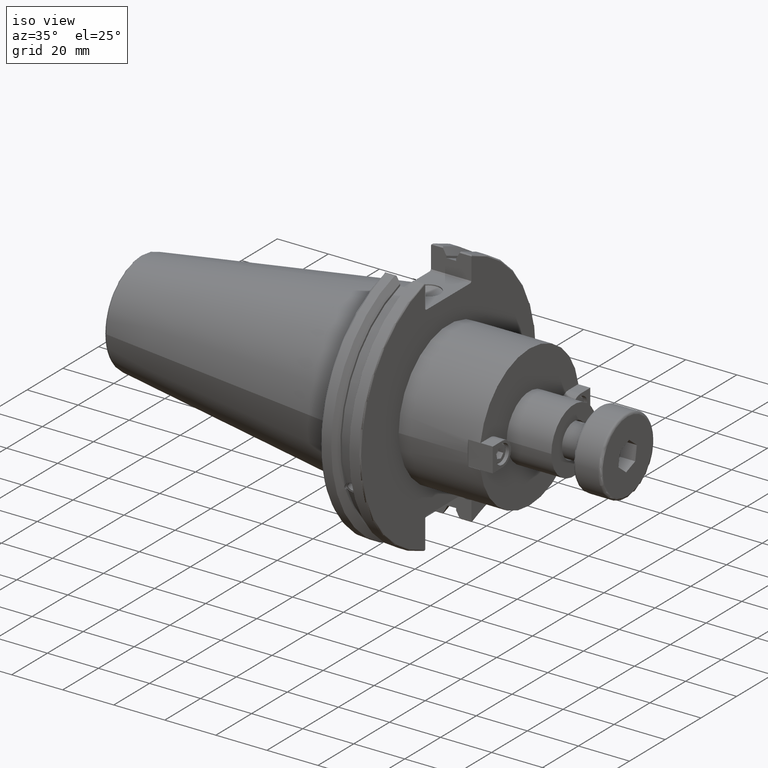
[diagram: clean part render]
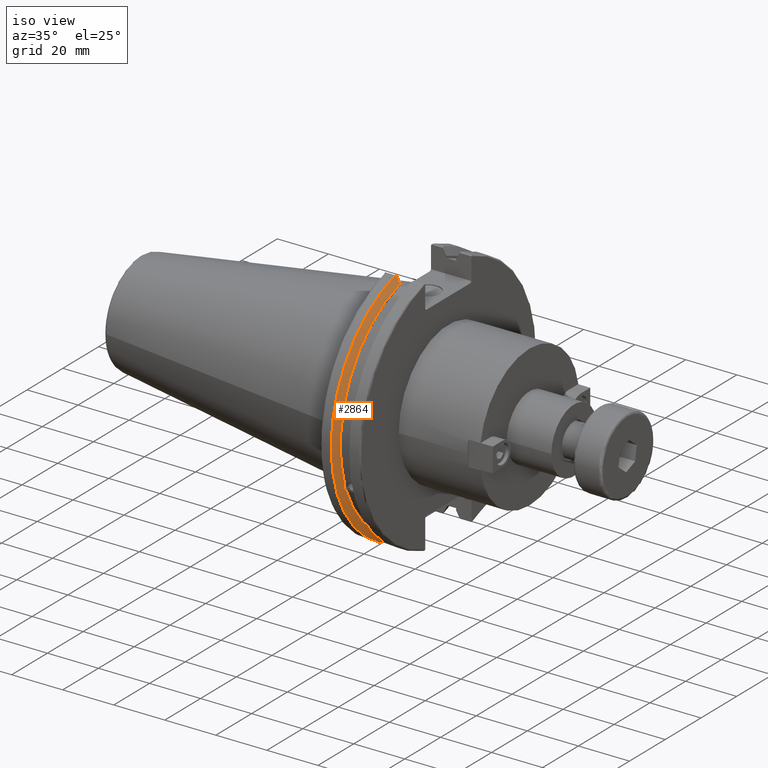
[diagram: same view with one face highlighted and labeled with its STEP entity id]
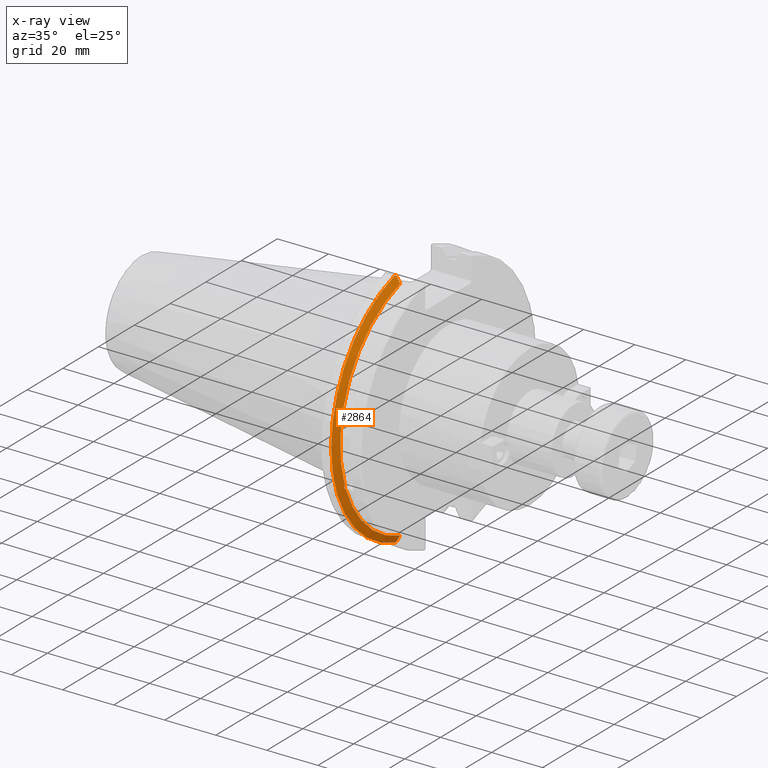
[diagram: x-ray of the same camera — body ghosted, the highlighted face saturated]
A machine part, iso view. The second image highlights one B-rep face of the part: STEP entity #2864.
The next image is the same camera in x-ray: the body ghosted, the highlighted face saturated — about 0% of this face is hidden behind the body in this view.
In plain terms, the highlighted conical surface has half-angle 60 deg.
Its self-contained STEP definition (entity closure, byte-faithful):
#461=(
BOUNDED_CURVE()
B_SPLINE_CURVE(2,(#5009,#5010,#5011),.UNSPECIFIED.,.F.,.F.)
B_SPLINE_CURVE_WITH_KNOTS((3,3),(0.,0.275823910674601),.UNSPECIFIED.)
CURVE()
GEOMETRIC_REPRESENTATION_ITEM()
RATIONAL_B_SPLINE_CURVE((1.,1.00038235573593,1.00012873636487))
REPRESENTATION_ITEM('')
);
#464=(
BOUNDED_CURVE()
B_SPLINE_CURVE(2,(#5137,#5138,#5139),.UNSPECIFIED.,.F.,.F.)
B_SPLINE_CURVE_WITH_KNOTS((3,3),(0.,0.0648240472897372),.UNSPECIFIED.)
CURVE()
GEOMETRIC_REPRESENTATION_ITEM()
RATIONAL_B_SPLINE_CURVE((1.,1.00011477674836,1.00019140645948))
REPRESENTATION_ITEM('')
);
#465=(
BOUNDED_CURVE()
B_SPLINE_CURVE(2,(#5147,#5148,#5149),.UNSPECIFIED.,.F.,.F.)
B_SPLINE_CURVE_WITH_KNOTS((3,3),(0.325260944932348,0.390084992222201),
 .UNSPECIFIED.)
CURVE()
GEOMETRIC_REPRESENTATION_ITEM()
RATIONAL_B_SPLINE_CURVE((1.00019140645916,1.00011477674817,1.))
REPRESENTATION_ITEM('')
);
#466=(
BOUNDED_CURVE()
B_SPLINE_CURVE(2,(#5199,#5200,#5201),.UNSPECIFIED.,.F.,.F.)
B_SPLINE_CURVE_WITH_KNOTS((3,3),(0.0558332664507492,0.331657177124507),
 .UNSPECIFIED.)
CURVE()
GEOMETRIC_REPRESENTATION_ITEM()
RATIONAL_B_SPLINE_CURVE((1.00012873636807,1.00038235574544,1.))
REPRESENTATION_ITEM('')
);
#496=B_SPLINE_CURVE_WITH_KNOTS('',3,(#4647,#4648,#4649,#4650,#4651,#4652,
#4653,#4654,#4655,#4656,#4657,#4658,#4659,#4660),.UNSPECIFIED.,.F.,.F.,
(4,2,2,2,2,2,4),(0.426712868358719,0.441644498666905,0.480313313223129,
0.518982127779352,0.557650942335576,0.596319756891799,0.611251387199982),
 .UNSPECIFIED.);
#576=CONICAL_SURFACE('',#3245,47.8172386482472,1.0471975511966);
#647=CIRCLE('',#3149,46.4219772964944);
#671=CIRCLE('',#3199,49.2125);
#687=CIRCLE('',#3246,46.4219772964944);
#838=FACE_OUTER_BOUND('',#1003,.T.);
#1003=EDGE_LOOP('',(#2469,#2470,#2471,#2472,#2473,#2474,#2475,#2476));
#1448=VERTEX_POINT('',#4644);
#1449=VERTEX_POINT('',#4646);
#1466=VERTEX_POINT('',#4737);
#1518=VERTEX_POINT('',#5006);
#1519=VERTEX_POINT('',#5008);
#1545=VERTEX_POINT('',#5135);
#1546=VERTEX_POINT('',#5141);
#1547=VERTEX_POINT('',#5145);
#1710=EDGE_CURVE('',#1449,#1448,#496,.T.);
#1733=EDGE_CURVE('',#1449,#1466,#647,.T.);
#1800=EDGE_CURVE('',#1519,#1518,#461,.T.);
#1837=EDGE_CURVE('',#1545,#1518,#464,.T.);
#1839=EDGE_CURVE('',#1545,#1546,#671,.T.);
#1841=EDGE_CURVE('',#1547,#1546,#465,.T.);
#1859=EDGE_CURVE('',#1547,#1466,#466,.T.);
#1879=EDGE_CURVE('',#1519,#1448,#687,.T.);
#2469=ORIENTED_EDGE('',*,*,#1710,.T.);
#2470=ORIENTED_EDGE('',*,*,#1879,.F.);
#2471=ORIENTED_EDGE('',*,*,#1800,.T.);
#2472=ORIENTED_EDGE('',*,*,#1837,.F.);
#2473=ORIENTED_EDGE('',*,*,#1839,.T.);
#2474=ORIENTED_EDGE('',*,*,#1841,.F.);
#2475=ORIENTED_EDGE('',*,*,#1859,.T.);
#2476=ORIENTED_EDGE('',*,*,#1733,.F.);
#2864=ADVANCED_FACE('',(#838),#576,.T.);
#3149=AXIS2_PLACEMENT_3D('',#4738,#3600,#3601);
#3199=AXIS2_PLACEMENT_3D('',#5143,#3752,#3753);
#3245=AXIS2_PLACEMENT_3D('',#5250,#3862,#3863);
#3246=AXIS2_PLACEMENT_3D('',#5251,#3864,#3865);
#3600=DIRECTION('center_axis',(1.,0.,0.));
#3601=DIRECTION('ref_axis',(0.,0.,-1.));
#3752=DIRECTION('center_axis',(1.,0.,0.));
#3753=DIRECTION('ref_axis',(0.,0.,-1.));
#3862=DIRECTION('center_axis',(-1.,0.,0.));
#3863=DIRECTION('ref_axis',(0.,-1.,-1.22464679914735E-16));
#3864=DIRECTION('center_axis',(1.,0.,0.));
#3865=DIRECTION('ref_axis',(0.,0.,-1.));
#4644=CARTESIAN_POINT('',(9.2191,-43.9096390749305,-15.0646464421033));
#4646=CARTESIAN_POINT('',(9.2191,-43.3201030900029,-16.6843832486479));
#4647=CARTESIAN_POINT('Ctrl Pts',(9.2191,-43.3201030900029,-16.6843832486479));
#4648=CARTESIAN_POINT('Ctrl Pts',(9.20211843903391,-43.3613106941341,-16.6592273018006));
#4649=CARTESIAN_POINT('Ctrl Pts',(9.18608675403322,-43.4012416983557,-16.6326763251437));
#4650=CARTESIAN_POINT('Ctrl Pts',(9.13238673845037,-43.5391037343221,-16.5325130832406));
#4651=CARTESIAN_POINT('Ctrl Pts',(9.09621610663555,-43.6406982153491,-16.441180795372));
#4652=CARTESIAN_POINT('Ctrl Pts',(9.04690868251975,-43.8110833825827,-16.2291323464527));
#4653=CARTESIAN_POINT('Ctrl Pts',(9.0341,-43.8794096049168,-16.10796730316));
#4654=CARTESIAN_POINT('Ctrl Pts',(9.03409999999999,-43.9675796948952,-15.8657219718732));
#4655=CARTESIAN_POINT('Ctrl Pts',(9.04690868251975,-43.9931221605126,-15.7289849146254));
#4656=CARTESIAN_POINT('Ctrl Pts',(9.09621610663555,-43.9989016655819,-15.4570249042868));
#4657=CARTESIAN_POINT('Ctrl Pts',(9.13238673845037,-43.9797830409458,-15.3217566390708));
#4658=CARTESIAN_POINT('Ctrl Pts',(9.18608675403322,-43.9385582852181,-15.1564111356409));
#4659=CARTESIAN_POINT('Ctrl Pts',(9.20211843903391,-43.9250360001461,-15.1104047527575));
#4660=CARTESIAN_POINT('Ctrl Pts',(9.21909999999999,-43.9096390749305,-15.0646464421033));
#4737=CARTESIAN_POINT('',(9.2191,-12.95,-44.5791147973604));
#4738=CARTESIAN_POINT('Origin',(9.2191,0.,0.));
#5006=CARTESIAN_POINT('',(7.88638960562424,-12.95,46.9780755322918));
#5008=CARTESIAN_POINT('',(9.2191,-12.95,44.5791147973604));
#5009=CARTESIAN_POINT('Ctrl Pts',(9.2191,-12.95,44.5791147973604));
#5010=CARTESIAN_POINT('Ctrl Pts',(8.57020449055857,-12.95,45.7494966802148));
#5011=CARTESIAN_POINT('Ctrl Pts',(7.88638960562424,-12.95,46.9780755322918));
#5135=CARTESIAN_POINT('',(7.60799096595127,-13.4317035994433,47.3440544806494));
#5137=CARTESIAN_POINT('Ctrl Pts',(7.60799096595126,-13.4317035994433,47.3440544806494));
#5138=CARTESIAN_POINT('Ctrl Pts',(7.7482689666382,-13.1896660169966,47.1601640966265));
#5139=CARTESIAN_POINT('Ctrl Pts',(7.88638960562424,-12.95,46.9780755322918));
#5141=CARTESIAN_POINT('',(7.60799096595127,-13.4317035994433,-47.3440544806494));
#5143=CARTESIAN_POINT('Origin',(7.60799096595127,0.,0.));
#5145=CARTESIAN_POINT('',(7.88638960562425,-12.95,-46.9780755322918));
#5147=CARTESIAN_POINT('Ctrl Pts',(7.88638960562425,-12.95,-46.9780755322918));
#5148=CARTESIAN_POINT('Ctrl Pts',(7.74826896663813,-13.1896660169967,-47.1601640966265));
#5149=CARTESIAN_POINT('Ctrl Pts',(7.60799096595127,-13.4317035994434,-47.3440544806494));
#5199=CARTESIAN_POINT('Ctrl Pts',(7.88638960562425,-12.95,-46.9780755322918));
#5200=CARTESIAN_POINT('Ctrl Pts',(8.57020449054166,-12.95,-45.7494966802452));
#5201=CARTESIAN_POINT('Ctrl Pts',(9.2191,-12.95,-44.5791147973604));
#5250=CARTESIAN_POINT('Origin',(8.41354548297563,0.,0.));
#5251=CARTESIAN_POINT('Origin',(9.2191,0.,0.));